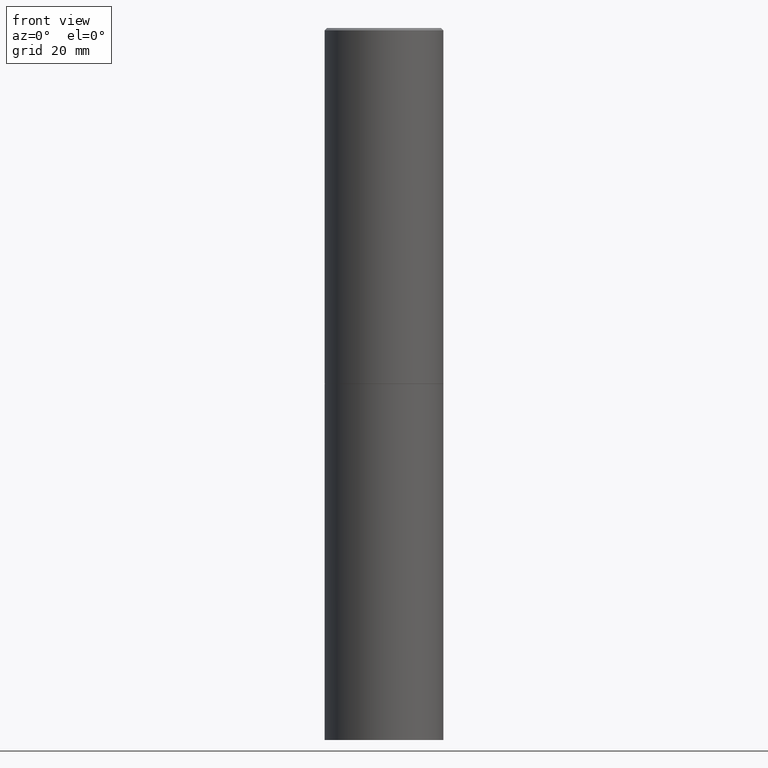
[diagram: clean part render]
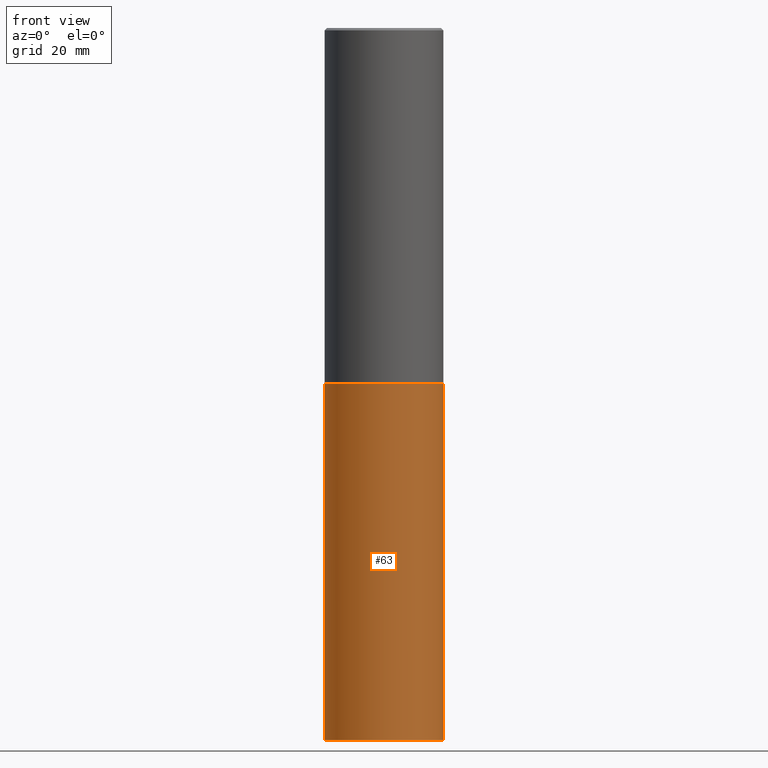
[diagram: same view with one face highlighted and labeled with its STEP entity id]
A machine part, front view. The second image highlights one B-rep face of the part: STEP entity #63.
In plain terms, the highlighted cylindrical surface (partial cylindrical patch) has radius 12.7 mm, axis along (-0, 0, 1).
Its self-contained STEP definition (entity closure, byte-faithful):
#5 = ORIENTED_EDGE ( 'NONE', *, *, #264, .T. ) ;
#6 = FACE_OUTER_BOUND ( 'NONE', #254, .T. ) ;
#15 = DIRECTION ( 'NONE',  ( -2.445468806185136877E-29, 3.491481338843145188E-15, 1.000000000000000000 ) ) ;
#20 = CARTESIAN_POINT ( 'NONE',  ( 7.336406418555409790E-29, -1.047444401652943635E-14, -3.000000000000000444 ) ) ;
#33 = CIRCLE ( 'NONE', #120, 0.5000000000000000000 ) ;
#39 = ORIENTED_EDGE ( 'NONE', *, *, #215, .F. ) ;
#50 = CARTESIAN_POINT ( 'NONE',  ( -0.5000000000000000000, -1.215895234599365439E-14, -3.000000000000000444 ) ) ;
#63 = ADVANCED_FACE ( 'NONE', ( #6 ), #114, .T. ) ;
#67 = VERTEX_POINT ( 'NONE', #96 ) ;
#94 = LINE ( 'NONE', #265, #146 ) ;
#96 = CARTESIAN_POINT ( 'NONE',  ( -0.5000000000000000000, -1.215895234599365439E-14, -6.000000000000000888 ) ) ;
#105 = ORIENTED_EDGE ( 'NONE', *, *, #304, .F. ) ;
#114 = CYLINDRICAL_SURFACE ( 'NONE', #175, 0.5000000000000000000 ) ;
#120 = AXIS2_PLACEMENT_3D ( 'NONE', #238, #185, #294 ) ;
#129 = VERTEX_POINT ( 'NONE', #50 ) ;
#131 = EDGE_CURVE ( 'NONE', #67, #280, #33, .T. ) ;
#134 = DIRECTION ( 'NONE',  ( -2.445468806185136877E-29, 3.491481338843145188E-15, 1.000000000000000000 ) ) ;
#138 = VERTEX_POINT ( 'NONE', #232 ) ;
#139 = CIRCLE ( 'NONE', #326, 0.5000000000000000000 ) ;
#146 = VECTOR ( 'NONE', #15, 39.37007874015748143 ) ;
#165 = ORIENTED_EDGE ( 'NONE', *, *, #131, .T. ) ;
#175 = AXIS2_PLACEMENT_3D ( 'NONE', #226, #343, #327 ) ;
#185 = DIRECTION ( 'NONE',  ( -2.445468806185136597E-29, 3.491481338843145583E-15, 1.000000000000000000 ) ) ;
#190 = VECTOR ( 'NONE', #134, 39.37007874015748143 ) ;
#215 = EDGE_CURVE ( 'NONE', #129, #138, #139, .T. ) ;
#226 = CARTESIAN_POINT ( 'NONE',  ( 0.000000000000000000, 0.000000000000000000, 0.000000000000000000 ) ) ;
#232 = CARTESIAN_POINT ( 'NONE',  ( 0.5000000000000000000, -1.396592535537257129E-14, -3.000000000000000444 ) ) ;
#238 = CARTESIAN_POINT ( 'NONE',  ( 1.467281283711081958E-28, -2.094888803305887271E-14, -6.000000000000000888 ) ) ;
#254 = EDGE_LOOP ( 'NONE', ( #105, #165, #5, #39 ) ) ;
#264 = EDGE_CURVE ( 'NONE', #280, #138, #94, .T. ) ;
#265 = CARTESIAN_POINT ( 'NONE',  ( 0.5000000000000000000, -3.491481338843133355E-15, 2.438088387897967896E-29 ) ) ;
#269 = LINE ( 'NONE', #306, #190 ) ;
#280 = VERTEX_POINT ( 'NONE', #347 ) ;
#294 = DIRECTION ( 'NONE',  ( 1.000000000000000000, -6.982962677686262766E-15, 0.000000000000000000 ) ) ;
#304 = EDGE_CURVE ( 'NONE', #67, #129, #269, .T. ) ;
#306 = CARTESIAN_POINT ( 'NONE',  ( -0.5000000000000000000, 3.552713678800500929E-15, -2.459467545127452891E-29 ) ) ;
#319 = DIRECTION ( 'NONE',  ( 1.000000000000000000, -6.982962677686266711E-15, 0.000000000000000000 ) ) ;
#326 = AXIS2_PLACEMENT_3D ( 'NONE', #20, #353, #319 ) ;
#327 = DIRECTION ( 'NONE',  ( 1.000000000000000000, -6.982962677686266711E-15, 4.876176775795935793E-29 ) ) ;
#343 = DIRECTION ( 'NONE',  ( -2.445468806185136597E-29, 3.491481338843145583E-15, 1.000000000000000000 ) ) ;
#347 = CARTESIAN_POINT ( 'NONE',  ( 0.5000000000000000000, -2.444036937190200606E-14, -6.000000000000000888 ) ) ;
#353 = DIRECTION ( 'NONE',  ( -2.445468806185136597E-29, 3.491481338843145583E-15, 1.000000000000000000 ) ) ;